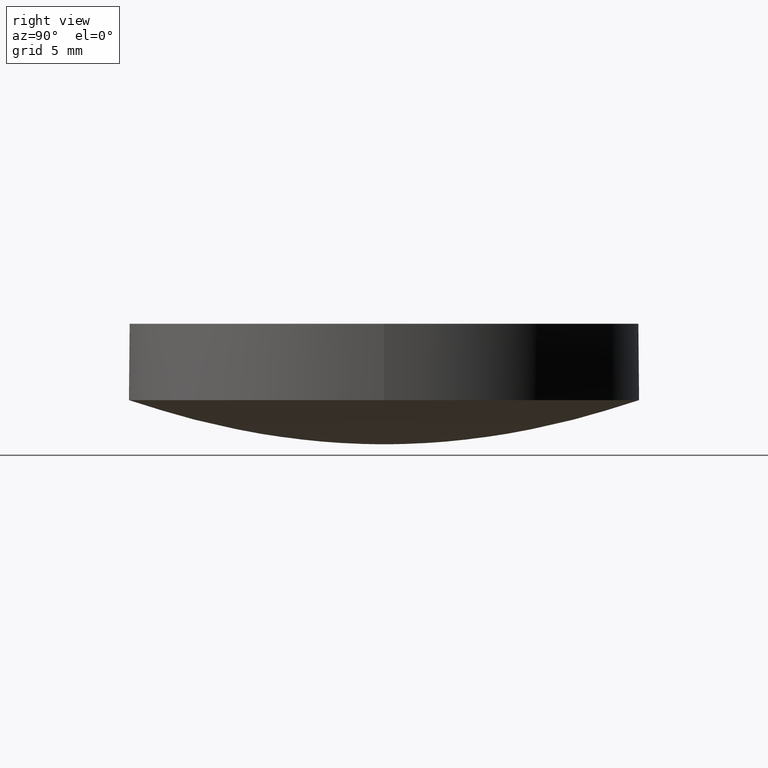
[diagram: clean part render]
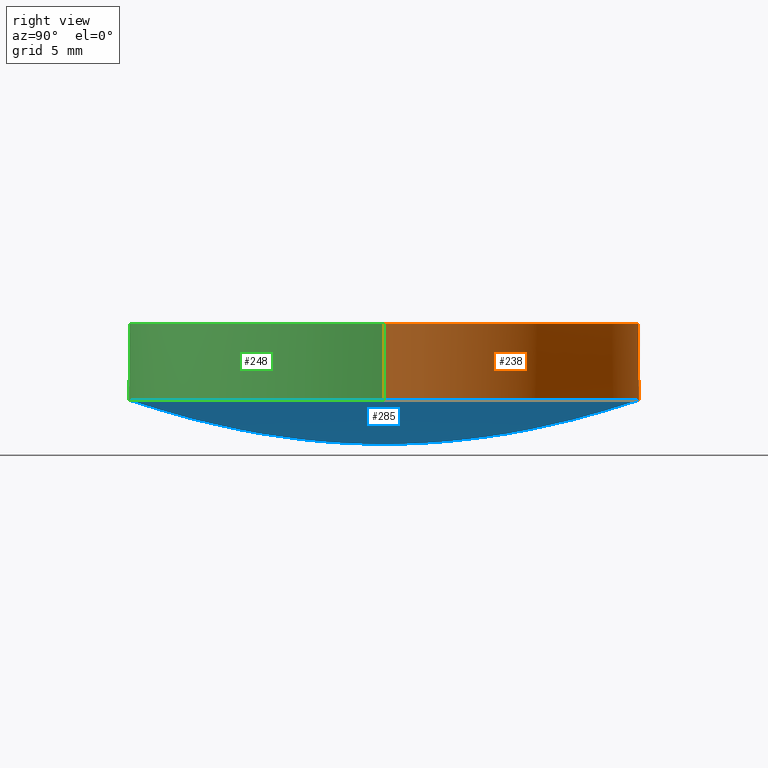
[diagram: same view with three faces highlighted in distinct colors, each labeled with its STEP entity id]
A machine part, right view with three faces highlighted in distinct colors.
Their STEP definitions:

[orange] entity #238 — the highlighted cylindrical surface (partial cylindrical patch) has radius 12.7 mm, axis along (0, 0, 1).
#5 = DIRECTION ( 'NONE',  ( -0.000000000000000000, -0.000000000000000000, -1.000000000000000000 ) ) ;
#7 = VECTOR ( 'NONE', #124, 1000.000000000000000 ) ;
#9 = VERTEX_POINT ( 'NONE', #460 ) ;
#33 = EDGE_CURVE ( 'NONE', #9, #488, #210, .T. ) ;
#41 = EDGE_CURVE ( 'NONE', #195, #68, #83, .T. ) ;
#65 = ORIENTED_EDGE ( 'NONE', *, *, #33, .T. ) ;
#68 = VERTEX_POINT ( 'NONE', #377 ) ;
#71 = EDGE_LOOP ( 'NONE', ( #111, #65, #356, #167, #403 ) ) ;
#80 = CYLINDRICAL_SURFACE ( 'NONE', #121, 12.69999999999999929 ) ;
#82 = DIRECTION ( 'NONE',  ( 1.000000000000000000, 0.000000000000000000, -6.829619984160658046E-17 ) ) ;
#83 = LINE ( 'NONE', #371, #507 ) ;
#111 = ORIENTED_EDGE ( 'NONE', *, *, #162, .F. ) ;
#121 = AXIS2_PLACEMENT_3D ( 'NONE', #134, #203, #295 ) ;
#124 = DIRECTION ( 'NONE',  ( 6.993530863780509846E-17, 4.890947394265059749E-33, 1.000000000000000000 ) ) ;
#126 = DIRECTION ( 'NONE',  ( -0.000000000000000000, -0.000000000000000000, -1.000000000000000000 ) ) ;
#134 = CARTESIAN_POINT ( 'NONE',  ( 8.881784197001250351E-16, -8.881784197001250351E-16, 2.197451818612039975 ) ) ;
#162 = EDGE_CURVE ( 'NONE', #9, #234, #225, .T. ) ;
#167 = ORIENTED_EDGE ( 'NONE', *, *, #41, .F. ) ;
#173 = CARTESIAN_POINT ( 'NONE',  ( 1.734723475976807094E-15, -1.345898117247522881E-15, 2.197451818612039975 ) ) ;
#195 = VERTEX_POINT ( 'NONE', #511 ) ;
#203 = DIRECTION ( 'NONE',  ( 6.993530863780509846E-17, 4.890947394265059749E-33, 1.000000000000000000 ) ) ;
#210 = LINE ( 'NONE', #330, #7 ) ;
#216 = CIRCLE ( 'NONE', #489, 12.69999999999999929 ) ;
#225 = CIRCLE ( 'NONE', #479, 12.70000000000000284 ) ;
#234 = VERTEX_POINT ( 'NONE', #367 ) ;
#238 = ADVANCED_FACE ( 'NONE', ( #324 ), #80, .T. ) ;
#247 = DIRECTION ( 'NONE',  ( -6.993530863780509846E-17, -4.890947394265059749E-33, -1.000000000000000000 ) ) ;
#295 = DIRECTION ( 'NONE',  ( 1.000000000000000000, 0.000000000000000000, -6.829619984160658046E-17 ) ) ;
#324 = FACE_OUTER_BOUND ( 'NONE', #71, .T. ) ;
#330 = CARTESIAN_POINT ( 'NONE',  ( -12.69999999999999751, 6.671230152170134961E-16, 2.197451818612040864 ) ) ;
#356 = ORIENTED_EDGE ( 'NONE', *, *, #425, .T. ) ;
#357 = EDGE_CURVE ( 'NONE', #234, #195, #395, .T. ) ;
#366 = CARTESIAN_POINT ( 'NONE',  ( 1.154110800375616501E-15, -8.881784197001250351E-16, 5.999999999999999112 ) ) ;
#367 = CARTESIAN_POINT ( 'NONE',  ( -3.851859888774471706E-31, 12.70000000000000284, 2.197451818612039975 ) ) ;
#371 = CARTESIAN_POINT ( 'NONE',  ( 12.70000000000000107, -8.881784197001250351E-16, 2.197451818612039087 ) ) ;
#377 = CARTESIAN_POINT ( 'NONE',  ( 12.70000000000000107, -8.881784197001250351E-16, 5.999999999999998224 ) ) ;
#395 = CIRCLE ( 'NONE', #406, 12.70000000000000284 ) ;
#403 = ORIENTED_EDGE ( 'NONE', *, *, #357, .F. ) ;
#406 = AXIS2_PLACEMENT_3D ( 'NONE', #465, #126, #504 ) ;
#413 = DIRECTION ( 'NONE',  ( -1.000000000000000000, 0.000000000000000000, 0.000000000000000000 ) ) ;
#425 = EDGE_CURVE ( 'NONE', #488, #68, #216, .T. ) ;
#454 = DIRECTION ( 'NONE',  ( 6.993530863780509846E-17, 4.890947394265059749E-33, 1.000000000000000000 ) ) ;
#460 = CARTESIAN_POINT ( 'NONE',  ( -12.70000000000000107, 6.671230152170136933E-16, 2.197451818612039975 ) ) ;
#465 = CARTESIAN_POINT ( 'NONE',  ( 1.734723475976807094E-15, -1.345898117247522881E-15, 2.197451818612039975 ) ) ;
#479 = AXIS2_PLACEMENT_3D ( 'NONE', #173, #5, #413 ) ;
#488 = VERTEX_POINT ( 'NONE', #528 ) ;
#489 = AXIS2_PLACEMENT_3D ( 'NONE', #366, #247, #82 ) ;
#504 = DIRECTION ( 'NONE',  ( -1.000000000000000000, 0.000000000000000000, 0.000000000000000000 ) ) ;
#507 = VECTOR ( 'NONE', #454, 1000.000000000000000 ) ;
#511 = CARTESIAN_POINT ( 'NONE',  ( 12.70000000000000462, -8.881784197001248379E-16, 2.197451818612039975 ) ) ;
#528 = CARTESIAN_POINT ( 'NONE',  ( -12.69999999999999751, 6.671230152170134961E-16, 6.000000000000000000 ) ) ;

[blue] entity #285 — the highlighted face is a freeform B-spline surface patch.
#1 = CARTESIAN_POINT ( 'NONE',  ( -3.241005728572560246E-17, -0.2646482014919789849, 0.000000000000000000 ) ) ;
#11 = CARTESIAN_POINT ( 'NONE',  ( -9.881579680847281111, -9.881579680847281111, 1.340326071960550092 ) ) ;
#13 = CARTESIAN_POINT ( 'NONE',  ( -6.705604643652271157, 6.705604643652271157, 0.6204309067409240486 ) ) ;
#15 = CARTESIAN_POINT ( 'NONE',  ( -11.12050896531350119, 6.809347854630319951E-16, 1.686076382450860001 ) ) ;
#19 = CARTESIAN_POINT ( 'NONE',  ( 7.587997314144440786, -1.393892493405849964E-15, 0.7937850246568419754 ) ) ;
#21 = CARTESIAN_POINT ( 'NONE',  ( 7.587997314144440786, 7.587997314144440786, 0.7937850246568420864 ) ) ;
#23 = CARTESIAN_POINT ( 'NONE',  ( 5.999939165251200635, -5.999939165251211293, 0.4967461427249240669 ) ) ;
#25 = CARTESIAN_POINT ( 'NONE',  ( 0.9709166173007780509, 0.9709166173007770517, 0.007826623216660751406 ) ) ;
#27 = CARTESIAN_POINT ( 'NONE',  ( 3.529323060183089833, -6.483261283215241177E-16, 0.1705053634074680247 ) ) ;
#29 = CARTESIAN_POINT ( 'NONE',  ( -7.347806293803730947E-16, -5.999939165251210405, 0.4967461427249240669 ) ) ;
#30 = CARTESIAN_POINT ( 'NONE',  ( 3.529323060183090277, -3.529323060183090277, 0.1705053634074679969 ) ) ;
#32 = CARTESIAN_POINT ( 'NONE',  ( 0.2646482014919789294, 0.2646482014919789294, 0.000000000000000000 ) ) ;
#34 = CARTESIAN_POINT ( 'NONE',  ( -1.555301434917141588E-15, -12.70000000000000462, 2.197451818612039975 ) ) ;
#37 = CARTESIAN_POINT ( 'NONE',  ( 0.000000000000000000, 12.69999999999999929, 2.197451818612039975 ) ) ;
#39 = CARTESIAN_POINT ( 'NONE',  ( -3.457931732471180000E-16, -2.823615539499820137, 0.1081007503329499964 ) ) ;
#40 = VERTEX_POINT ( 'NONE', #178 ) ;
#45 = CARTESIAN_POINT ( 'NONE',  ( 0.000000000000000000, 0.000000000000000000, 0.000000000000000000 ) ) ;
#48 = CARTESIAN_POINT ( 'NONE',  ( 0.000000000000000000, 9.881579680847279334, 1.340326071960550092 ) ) ;
#49 = B_SPLINE_CURVE_WITH_KNOTS ( 'NONE', 3,
 ( #414, #128, #503, #495, #365, #292, #81, #201, #325, #252, #408, #320, #405, #204, #411, #168, #450 ),
 .UNSPECIFIED., .F., .F.,
 ( 4, 1, 1, 1, 1, 1, 1, 1, 1, 1, 1, 1, 1, 1, 4 ),
 ( 0.000000000000000000, 0.1711261176727990052, 0.2135614419187649993, 0.2980152312877710208, 0.3400336964108119919, 0.4237076803100590094, 0.4653631990862669987, 0.5483733313384220320, 0.5897279448143709635, 0.6722051610619159678, 0.7133277638335130399, 0.7954152136409540219, 0.8363800606767990420, 0.9386724538563220310, 1.000000000000000000 ),
 .UNSPECIFIED. ) ;
#51 = CARTESIAN_POINT ( 'NONE',  ( 0.000000000000000000, 6.705604643652271157, 0.6204309067409240486 ) ) ;
#55 = CARTESIAN_POINT ( 'NONE',  ( -9.175968922900919367, -9.175968922900919367, 1.157604965641559902 ) ) ;
#58 = CARTESIAN_POINT ( 'NONE',  ( 9.175968922900928249, 9.175968922900919367, 1.157604965641559902 ) ) ;
#60 = CARTESIAN_POINT ( 'NONE',  ( -11.12050896531349942, 11.12050896531349942, 1.686076382450860001 ) ) ;
#62 = CARTESIAN_POINT ( 'NONE',  ( 0.000000000000000000, 5.117495180305819957, 0.3610946254766860264 ) ) ;
#64 = CARTESIAN_POINT ( 'NONE',  ( -1.853068808560519809, 1.853068808560519809, 0.04368035160071269407 ) ) ;
#67 = CARTESIAN_POINT ( 'NONE',  ( -3.529323060183090277, 3.529323060183090277, 0.1705053634074679969 ) ) ;
#70 = CARTESIAN_POINT ( 'NONE',  ( -3.529323060183090277, -3.529323060183090277, 0.1705053634074679969 ) ) ;
#73 = CARTESIAN_POINT ( 'NONE',  ( 2.823615539499820581, -2.823615539499820581, 0.1081007503329500102 ) ) ;
#74 = CIRCLE ( 'NONE', #85, 12.70000000000000284 ) ;
#78 = DIRECTION ( 'NONE',  ( -1.000000000000000000, 0.000000000000000000, 0.000000000000000000 ) ) ;
#81 = CARTESIAN_POINT ( 'NONE',  ( 0.000000000000000000, 7.587997314144440786, 0.7937850246568419754 ) ) ;
#85 = AXIS2_PLACEMENT_3D ( 'NONE', #458, #208, #78 ) ;
#91 = CARTESIAN_POINT ( 'NONE',  ( -5.999939165251211293, 5.999939165251211293, 0.4967461427249240669 ) ) ;
#95 = CARTESIAN_POINT ( 'NONE',  ( -7.587997314144440786, 4.646308311352849977E-16, 0.7937850246568419754 ) ) ;
#98 = CARTESIAN_POINT ( 'NONE',  ( 12.00034429507980072, 12.00034429507980072, 1.961206610540939588 ) ) ;
#101 = CARTESIAN_POINT ( 'NONE',  ( 0.000000000000000000, 9.881579680847279334, 1.340326071960550092 ) ) ;
#104 = CARTESIAN_POINT ( 'NONE',  ( 0.000000000000000000, 6.705604643652271157, 0.6204309067409240486 ) ) ;
#106 = CARTESIAN_POINT ( 'NONE',  ( -2.823615539499820581, -2.823615539499820581, 0.1081007503329500102 ) ) ;
#108 = CARTESIAN_POINT ( 'NONE',  ( -3.241005728572560246E-17, -0.2646482014919789849, 0.000000000000000000 ) ) ;
#110 = CARTESIAN_POINT ( 'NONE',  ( 0.9709166173007770517, -0.9709166173007780509, 0.007826623216660751406 ) ) ;
#115 = CARTESIAN_POINT ( 'NONE',  ( -0.9709166173007780509, 5.945149638081860249E-17, 0.007826623216660749671 ) ) ;
#117 = CARTESIAN_POINT ( 'NONE',  ( 0.000000000000000000, 5.999939165251210405, 0.4967461427249240669 ) ) ;
#118 = VERTEX_POINT ( 'NONE', #34 ) ;
#120 = CARTESIAN_POINT ( 'NONE',  ( 0.000000000000000000, 0.000000000000000000, 0.000000000000000000 ) ) ;
#123 = CARTESIAN_POINT ( 'NONE',  ( -4.322174188810160128E-16, -3.529323060183089833, 0.1705053634074680247 ) ) ;
#126 = DIRECTION ( 'NONE',  ( -0.000000000000000000, -0.000000000000000000, -1.000000000000000000 ) ) ;
#128 = CARTESIAN_POINT ( 'NONE',  ( 0.000000000000000000, 12.00034429507980072, 1.961206610540939810 ) ) ;
#129 = CARTESIAN_POINT ( 'NONE',  ( -9.292616622705699954E-16, -7.587997314144440786, 0.7937850246568419754 ) ) ;
#131 = CARTESIAN_POINT ( 'NONE',  ( 12.69999999999999929, 12.69999999999999929, 2.197451818612039975 ) ) ;
#133 = CARTESIAN_POINT ( 'NONE',  ( -7.347806293803730947E-16, -5.999939165251210405, 0.4967461427249240669 ) ) ;
#136 = CARTESIAN_POINT ( 'NONE',  ( 0.000000000000000000, 5.999939165251210405, 0.4967461427249240669 ) ) ;
#139 = CARTESIAN_POINT ( 'NONE',  ( -1.469618322963560219E-15, -12.00034429507980072, 1.961206610540939810 ) ) ;
#143 = CARTESIAN_POINT ( 'NONE',  ( -9.881579680847279334, 6.050722463334570254E-16, 1.340326071960550092 ) ) ;
#146 = CARTESIAN_POINT ( 'NONE',  ( -1.015677507467560091E-15, -8.293636240054830466, 0.9473380225862650938 ) ) ;
#148 = CARTESIAN_POINT ( 'NONE',  ( 6.705604643652271157, -1.231799589479459969E-15, 0.6204309067409240486 ) ) ;
#150 = CARTESIAN_POINT ( 'NONE',  ( -0.2646482014919789294, 0.2646482014919789294, 0.000000000000000000 ) ) ;
#152 = CARTESIAN_POINT ( 'NONE',  ( 1.853068808560520031, -3.404032177505150393E-16, 0.04368035160071270101 ) ) ;
#155 = CARTESIAN_POINT ( 'NONE',  ( 5.117495180305819957, 5.117495180305819957, 0.3610946254766859709 ) ) ;
#157 = CARTESIAN_POINT ( 'NONE',  ( 0.000000000000000000, 2.823615539499820137, 0.1081007503329499964 ) ) ;
#161 = CARTESIAN_POINT ( 'NONE',  ( -1.189029927616370324E-16, -0.9709166173007780509, 0.007826623216660749671 ) ) ;
#164 = CARTESIAN_POINT ( 'NONE',  ( -1.189029927616370324E-16, -0.9709166173007780509, 0.007826623216660749671 ) ) ;
#168 = CARTESIAN_POINT ( 'NONE',  ( 0.000000000000000000, 0.2646482014919789849, 0.000000000000000000 ) ) ;
#169 = CARTESIAN_POINT ( 'NONE',  ( 0.000000000000000000, 0.000000000000000000, 0.000000000000000000 ) ) ;
#170 = CARTESIAN_POINT ( 'NONE',  ( -12.00034429507980072, 12.00034429507980072, 1.961206610540939588 ) ) ;
#172 = CARTESIAN_POINT ( 'NONE',  ( -5.402905364136339613E-16, -4.411807035218689776, 0.2678392450587179785 ) ) ;
#178 = CARTESIAN_POINT ( 'NONE',  ( 0.000000000000000000, 0.000000000000000000, 0.000000000000000000 ) ) ;
#180 = CARTESIAN_POINT ( 'NONE',  ( -1.123732097050620097E-15, -9.175968922900919367, 1.157604965641559902 ) ) ;
#182 = CARTESIAN_POINT ( 'NONE',  ( -6.705604643652271157, 4.105998631598190199E-16, 0.6204309067409240486 ) ) ;
#186 = CARTESIAN_POINT ( 'NONE',  ( -11.12050896531349942, -11.12050896531349942, 1.686076382450860001 ) ) ;
#188 = CARTESIAN_POINT ( 'NONE',  ( 0.000000000000000000, 7.587997314144440786, 0.7937850246568419754 ) ) ;
#190 = CARTESIAN_POINT ( 'NONE',  ( -1.361869570926060046E-15, -11.12050896531350119, 1.686076382450860001 ) ) ;
#192 = CARTESIAN_POINT ( 'NONE',  ( 0.000000000000000000, 3.529323060183089833, 0.1705053634074680247 ) ) ;
#194 = CARTESIAN_POINT ( 'NONE',  ( 0.000000000000000000, 4.411807035218689776, 0.2678392450587179785 ) ) ;
#195 = VERTEX_POINT ( 'NONE', #511 ) ;
#197 = CARTESIAN_POINT ( 'NONE',  ( -4.411807035218689776, 4.411807035218689776, 0.2678392450587179230 ) ) ;
#199 = CARTESIAN_POINT ( 'NONE',  ( 4.411807035218689776, -8.104358046204509913E-16, 0.2678392450587179785 ) ) ;
#200 = CARTESIAN_POINT ( 'NONE',  ( -0.2646482014919789294, -0.2646482014919789294, 0.000000000000000000 ) ) ;
#201 = CARTESIAN_POINT ( 'NONE',  ( 0.000000000000000000, 6.705604643652271157, 0.6204309067409240486 ) ) ;
#204 = CARTESIAN_POINT ( 'NONE',  ( 0.000000000000000000, 1.853068808560520031, 0.04368035160071270101 ) ) ;
#206 = CARTESIAN_POINT ( 'NONE',  ( 0.000000000000000000, 12.00034429507980072, 1.961206610540939810 ) ) ;
#208 = DIRECTION ( 'NONE',  ( -0.000000000000000000, -0.000000000000000000, -1.000000000000000000 ) ) ;
#209 = CARTESIAN_POINT ( 'NONE',  ( 0.000000000000000000, 0.000000000000000000, 0.000000000000000000 ) ) ;
#219 = CARTESIAN_POINT ( 'NONE',  ( -9.881579680847281111, 9.881579680847281111, 1.340326071960550092 ) ) ;
#221 = CARTESIAN_POINT ( 'NONE',  ( 0.000000000000000000, 11.12050896531350119, 1.686076382450860001 ) ) ;
#224 = CARTESIAN_POINT ( 'NONE',  ( -8.293636240054830466, 5.078387537337820178E-16, 0.9473380225862650938 ) ) ;
#227 = CARTESIAN_POINT ( 'NONE',  ( 8.293636240054828690, -8.293636240054828690, 0.9473380225862649828 ) ) ;
#229 = CARTESIAN_POINT ( 'NONE',  ( -9.175968922900919367, 5.618660485253100484E-16, 1.157604965641559902 ) ) ;
#231 = CARTESIAN_POINT ( 'NONE',  ( 5.117495180305819957, -5.117495180305819957, 0.3610946254766859709 ) ) ;
#233 = CARTESIAN_POINT ( 'NONE',  ( 0.000000000000000000, 0.9709166173007780509, 0.007826623216660749671 ) ) ;
#234 = VERTEX_POINT ( 'NONE', #367 ) ;
#236 = CARTESIAN_POINT ( 'NONE',  ( 0.000000000000000000, 2.823615539499820137, 0.1081007503329499964 ) ) ;
#240 = CARTESIAN_POINT ( 'NONE',  ( 0.000000000000000000, 3.529323060183089833, 0.1705053634074680247 ) ) ;
#242 = CARTESIAN_POINT ( 'NONE',  ( -0.9709166173007780509, -0.9709166173007770517, 0.007826623216660751406 ) ) ;
#243 = ORIENTED_EDGE ( 'NONE', *, *, #357, .T. ) ;
#249 = CARTESIAN_POINT ( 'NONE',  ( 12.69999999999999929, -2.332952152375710015E-15, 2.197451818612039975 ) ) ;
#250 = CARTESIAN_POINT ( 'NONE',  ( 0.000000000000000000, 0.000000000000000000, 0.000000000000000000 ) ) ;
#251 = CARTESIAN_POINT ( 'NONE',  ( -1.555301434917140010E-15, -12.69999999999999929, 2.197451818612039975 ) ) ;
#252 = CARTESIAN_POINT ( 'NONE',  ( 0.000000000000000000, 5.117495180305819957, 0.3610946254766860264 ) ) ;
#258 = CARTESIAN_POINT ( 'NONE',  ( 0.000000000000000000, 11.12050896531350119, 1.686076382450860001 ) ) ;
#261 = CARTESIAN_POINT ( 'NONE',  ( -7.587997314144440786, -7.587997314144440786, 0.7937850246568420864 ) ) ;
#263 = CARTESIAN_POINT ( 'NONE',  ( -12.00034429507980072, -12.00034429507980072, 1.961206610540939588 ) ) ;
#265 = CARTESIAN_POINT ( 'NONE',  ( 0.000000000000000000, 9.175968922900919367, 1.157604965641559902 ) ) ;
#267 = CARTESIAN_POINT ( 'NONE',  ( 11.12050896531349942, 11.12050896531349942, 1.686076382450860001 ) ) ;
#269 = CARTESIAN_POINT ( 'NONE',  ( -5.117495180305819957, 5.117495180305819957, 0.3610946254766859709 ) ) ;
#271 = CARTESIAN_POINT ( 'NONE',  ( 5.117495180305819957, -9.400686138320300585E-16, 0.3610946254766860264 ) ) ;
#274 = CARTESIAN_POINT ( 'NONE',  ( 2.823615539499820137, -5.186897598706770001E-16, 0.1081007503329499964 ) ) ;
#277 = CARTESIAN_POINT ( 'NONE',  ( 0.000000000000000000, 0.2646482014919789849, 0.000000000000000000 ) ) ;
#279 = CARTESIAN_POINT ( 'NONE',  ( 0.000000000000000000, 4.411807035218689776, 0.2678392450587179785 ) ) ;
#285 = ADVANCED_FACE ( 'NONE', ( #542 ), #524, .T. ) ;
#288 = CARTESIAN_POINT ( 'NONE',  ( -12.69999999999999929, -12.69999999999999929, 2.197451818612039975 ) ) ;
#290 = CARTESIAN_POINT ( 'NONE',  ( -6.267124092213530108E-16, -5.117495180305819957, 0.3610946254766860264 ) ) ;
#291 = CARTESIAN_POINT ( 'NONE',  ( 0.000000000000000000, 12.69999999999999929, 2.197451818612039975 ) ) ;
#292 = CARTESIAN_POINT ( 'NONE',  ( 0.000000000000000000, 8.293636240054830466, 0.9473380225862650938 ) ) ;
#294 = CARTESIAN_POINT ( 'NONE',  ( 0.000000000000000000, 0.000000000000000000, 0.000000000000000000 ) ) ;
#297 = CARTESIAN_POINT ( 'NONE',  ( -5.999939165251210405, 3.673903146901869911E-16, 0.4967461427249240669 ) ) ;
#300 = CARTESIAN_POINT ( 'NONE',  ( 0.000000000000000000, 12.00034429507980072, 1.961206610540939810 ) ) ;
#302 = CARTESIAN_POINT ( 'NONE',  ( -1.210144492666909909E-15, -9.881579680847279334, 1.340326071960550092 ) ) ;
#304 = CARTESIAN_POINT ( 'NONE',  ( -6.705604643652271157, -6.705604643652271157, 0.6204309067409240486 ) ) ;
#306 = CARTESIAN_POINT ( 'NONE',  ( 8.293636240054828690, 8.293636240054828690, 0.9473380225862649828 ) ) ;
#309 = CARTESIAN_POINT ( 'NONE',  ( -3.529323060183089833, 2.161087094405080064E-16, 0.1705053634074680247 ) ) ;
#311 = CARTESIAN_POINT ( 'NONE',  ( 1.853068808560519809, 1.853068808560519809, 0.04368035160071269407 ) ) ;
#313 = CARTESIAN_POINT ( 'NONE',  ( -2.823615539499820581, 2.823615539499820581, 0.1081007503329500102 ) ) ;
#317 = CARTESIAN_POINT ( 'NONE',  ( 4.411807035218689776, 4.411807035218680006, 0.2678392450587179230 ) ) ;
#319 = CARTESIAN_POINT ( 'NONE',  ( -5.402905364136339613E-16, -4.411807035218689776, 0.2678392450587179785 ) ) ;
#320 = CARTESIAN_POINT ( 'NONE',  ( 0.000000000000000000, 3.529323060183089833, 0.1705053634074680247 ) ) ;
#323 = CARTESIAN_POINT ( 'NONE',  ( -2.269354785003439840E-16, -1.853068808560520031, 0.04368035160071270101 ) ) ;
#325 = CARTESIAN_POINT ( 'NONE',  ( 0.000000000000000000, 5.999939165251210405, 0.4967461427249240669 ) ) ;
#326 = CARTESIAN_POINT ( 'NONE',  ( 0.000000000000000000, 0.000000000000000000, 0.000000000000000000 ) ) ;
#327 = CARTESIAN_POINT ( 'NONE',  ( -12.69999999999999929, 7.776507174585690191E-16, 2.197451818612039975 ) ) ;
#328 = EDGE_CURVE ( 'NONE', #118, #40, #385, .T. ) ;
#339 = CARTESIAN_POINT ( 'NONE',  ( -8.293636240054828690, 8.293636240054828690, 0.9473380225862649828 ) ) ;
#344 = CARTESIAN_POINT ( 'NONE',  ( -8.211997263196380398E-16, -6.705604643652271157, 0.6204309067409240486 ) ) ;
#347 = CARTESIAN_POINT ( 'NONE',  ( 9.881579680847279334, -1.815216739000370189E-15, 1.340326071960550092 ) ) ;
#349 = CARTESIAN_POINT ( 'NONE',  ( 9.881579680847281111, -9.881579680847281111, 1.340326071960550092 ) ) ;
#351 = CARTESIAN_POINT ( 'NONE',  ( 12.00034429507980072, -2.204427484445339934E-15, 1.961206610540939810 ) ) ;
#353 = CARTESIAN_POINT ( 'NONE',  ( 3.529323060183090277, 3.529323060183090277, 0.1705053634074679969 ) ) ;
#355 = CARTESIAN_POINT ( 'NONE',  ( -1.853068808560519809, -1.853068808560519809, 0.04368035160071269407 ) ) ;
#357 = EDGE_CURVE ( 'NONE', #234, #195, #395, .T. ) ;
#359 = CARTESIAN_POINT ( 'NONE',  ( -6.267124092213530108E-16, -5.117495180305819957, 0.3610946254766860264 ) ) ;
#360 = ORIENTED_EDGE ( 'NONE', *, *, #532, .T. ) ;
#362 = CARTESIAN_POINT ( 'NONE',  ( 5.999939165251211293, 5.999939165251200635, 0.4967461427249240669 ) ) ;
#364 = CARTESIAN_POINT ( 'NONE',  ( -1.123732097050620097E-15, -9.175968922900919367, 1.157604965641559902 ) ) ;
#365 = CARTESIAN_POINT ( 'NONE',  ( 0.000000000000000000, 9.175968922900919367, 1.157604965641559902 ) ) ;
#367 = CARTESIAN_POINT ( 'NONE',  ( -3.851859888774471706E-31, 12.70000000000000284, 2.197451818612039975 ) ) ;
#369 = CARTESIAN_POINT ( 'NONE',  ( -1.555301434917141588E-15, -12.70000000000000462, 2.197451818612039975 ) ) ;
#372 = CARTESIAN_POINT ( 'NONE',  ( -1.015677507467560091E-15, -8.293636240054830466, 0.9473380225862650938 ) ) ;
#379 = CARTESIAN_POINT ( 'NONE',  ( 0.000000000000000000, 9.175968922900919367, 1.157604965641559902 ) ) ;
#381 = CARTESIAN_POINT ( 'NONE',  ( 9.175968922900919367, -1.685598145575929948E-15, 1.157604965641559902 ) ) ;
#384 = CARTESIAN_POINT ( 'NONE',  ( -7.587997314144440786, 7.587997314144440786, 0.7937850246568420864 ) ) ;
#385 = B_SPLINE_CURVE_WITH_KNOTS ( 'NONE', 3,
 ( #369, #456, #538, #499, #364, #372, #129, #544, #133, #290, #172, #123, #39, #323, #164, #1, #169 ),
 .UNSPECIFIED., .F., .F.,
 ( 4, 1, 1, 1, 1, 1, 1, 1, 1, 1, 1, 1, 1, 1, 4 ),
 ( 0.000000000000000000, 0.1711261176727990052, 0.2135614419187649993, 0.2980152312877710208, 0.3400336964108119919, 0.4237076803100590094, 0.4653631990862669987, 0.5483733313384220320, 0.5897279448143709635, 0.6722051610619159678, 0.7133277638335130399, 0.7954152136409540219, 0.8363800606767990420, 0.9386724538563220310, 1.000000000000000000 ),
 .UNSPECIFIED. ) ;
#389 = CARTESIAN_POINT ( 'NONE',  ( -9.292616622705699954E-16, -7.587997314144440786, 0.7937850246568419754 ) ) ;
#391 = CARTESIAN_POINT ( 'NONE',  ( 0.000000000000000000, 7.587997314144440786, 0.7937850246568419754 ) ) ;
#393 = CARTESIAN_POINT ( 'NONE',  ( -4.411807035218689776, -4.411807035218680006, 0.2678392450587179230 ) ) ;
#395 = CIRCLE ( 'NONE', #406, 12.70000000000000284 ) ;
#397 = CARTESIAN_POINT ( 'NONE',  ( 0.9709166173007780509, -1.783544891424559924E-16, 0.007826623216660749671 ) ) ;
#400 = CARTESIAN_POINT ( 'NONE',  ( 0.000000000000000000, 5.117495180305819957, 0.3610946254766860264 ) ) ;
#402 = CARTESIAN_POINT ( 'NONE',  ( -4.411807035218689776, 2.701452682068169807E-16, 0.2678392450587179785 ) ) ;
#405 = CARTESIAN_POINT ( 'NONE',  ( 0.000000000000000000, 2.823615539499820137, 0.1081007503329499964 ) ) ;
#406 = AXIS2_PLACEMENT_3D ( 'NONE', #465, #126, #504 ) ;
#407 = CARTESIAN_POINT ( 'NONE',  ( 0.000000000000000000, 0.9709166173007780509, 0.007826623216660749671 ) ) ;
#408 = CARTESIAN_POINT ( 'NONE',  ( 0.000000000000000000, 4.411807035218689776, 0.2678392450587179785 ) ) ;
#411 = CARTESIAN_POINT ( 'NONE',  ( 0.000000000000000000, 0.9709166173007780509, 0.007826623216660749671 ) ) ;
#414 = CARTESIAN_POINT ( 'NONE',  ( -3.851859888774471706E-31, 12.70000000000000284, 2.197451818612039975 ) ) ;
#415 = CARTESIAN_POINT ( 'NONE',  ( 0.000000000000000000, 0.000000000000000000, 0.000000000000000000 ) ) ;
#417 = EDGE_LOOP ( 'NONE', ( #360, #539, #509, #243 ) ) ;
#422 = CARTESIAN_POINT ( 'NONE',  ( 0.2646482014919789849, -4.861508592858829892E-17, 0.000000000000000000 ) ) ;
#427 = CARTESIAN_POINT ( 'NONE',  ( 12.00034429507980072, -12.00034429507980072, 1.961206610540939588 ) ) ;
#431 = CARTESIAN_POINT ( 'NONE',  ( 7.587997314144440786, -7.587997314144440786, 0.7937850246568420864 ) ) ;
#433 = CARTESIAN_POINT ( 'NONE',  ( 11.12050896531349942, -11.12050896531349942, 1.686076382450860001 ) ) ;
#436 = CARTESIAN_POINT ( 'NONE',  ( 11.12050896531350119, -2.042804356389100028E-15, 1.686076382450860001 ) ) ;
#439 = CARTESIAN_POINT ( 'NONE',  ( 9.175968922900919367, -9.175968922900928249, 1.157604965641559902 ) ) ;
#441 = CARTESIAN_POINT ( 'NONE',  ( -5.117495180305819957, -5.117495180305819957, 0.3610946254766859709 ) ) ;
#444 = CARTESIAN_POINT ( 'NONE',  ( 5.999939165251210405, -1.102170944070560086E-15, 0.4967461427249240669 ) ) ;
#447 = CARTESIAN_POINT ( 'NONE',  ( -5.117495180305819957, 3.133562046106770477E-16, 0.3610946254766860264 ) ) ;
#449 = CARTESIAN_POINT ( 'NONE',  ( -0.2646482014919789849, 1.620502864286280123E-17, 0.000000000000000000 ) ) ;
#450 = CARTESIAN_POINT ( 'NONE',  ( 0.000000000000000000, 0.000000000000000000, 0.000000000000000000 ) ) ;
#451 = CARTESIAN_POINT ( 'NONE',  ( -3.457931732471180000E-16, -2.823615539499820137, 0.1081007503329499964 ) ) ;
#456 = CARTESIAN_POINT ( 'NONE',  ( -1.469618322963560219E-15, -12.00034429507980072, 1.961206610540939810 ) ) ;
#457 = CARTESIAN_POINT ( 'NONE',  ( 12.69999999999999929, -12.69999999999999929, 2.197451818612039975 ) ) ;
#458 = CARTESIAN_POINT ( 'NONE',  ( 1.734723475976807094E-15, -1.345898117247522881E-15, 2.197451818612039975 ) ) ;
#459 = CARTESIAN_POINT ( 'NONE',  ( 0.2646482014919789294, -0.2646482014919789294, 0.000000000000000000 ) ) ;
#465 = CARTESIAN_POINT ( 'NONE',  ( 1.734723475976807094E-15, -1.345898117247522881E-15, 2.197451818612039975 ) ) ;
#469 = CARTESIAN_POINT ( 'NONE',  ( -5.999939165251211293, -5.999939165251200635, 0.4967461427249240669 ) ) ;
#471 = CARTESIAN_POINT ( 'NONE',  ( 0.000000000000000000, 8.293636240054830466, 0.9473380225862650938 ) ) ;
#473 = CARTESIAN_POINT ( 'NONE',  ( 0.000000000000000000, 8.293636240054830466, 0.9473380225862650938 ) ) ;
#476 = CARTESIAN_POINT ( 'NONE',  ( 9.881579680847281111, 9.881579680847281111, 1.340326071960550092 ) ) ;
#478 = CARTESIAN_POINT ( 'NONE',  ( 6.705604643652271157, 6.705604643652271157, 0.6204309067409240486 ) ) ;
#481 = CARTESIAN_POINT ( 'NONE',  ( -2.823615539499820137, 1.728965866235590000E-16, 0.1081007503329499964 ) ) ;
#484 = CARTESIAN_POINT ( 'NONE',  ( -0.9709166173007770517, 0.9709166173007780509, 0.007826623216660751406 ) ) ;
#487 = CARTESIAN_POINT ( 'NONE',  ( 1.853068808560519809, -1.853068808560519809, 0.04368035160071269407 ) ) ;
#491 = CARTESIAN_POINT ( 'NONE',  ( -2.269354785003439840E-16, -1.853068808560520031, 0.04368035160071270101 ) ) ;
#494 = CARTESIAN_POINT ( 'NONE',  ( 4.411807035218680006, -4.411807035218689776, 0.2678392450587179230 ) ) ;
#495 = CARTESIAN_POINT ( 'NONE',  ( 0.000000000000000000, 9.881579680847279334, 1.340326071960550092 ) ) ;
#496 = CARTESIAN_POINT ( 'NONE',  ( 0.000000000000000000, 0.000000000000000000, 0.000000000000000000 ) ) ;
#499 = CARTESIAN_POINT ( 'NONE',  ( -1.210144492666909909E-15, -9.881579680847279334, 1.340326071960550092 ) ) ;
#500 = EDGE_CURVE ( 'NONE', #234, #40, #49, .T. ) ;
#501 = CARTESIAN_POINT ( 'NONE',  ( 0.000000000000000000, 0.2646482014919789849, 0.000000000000000000 ) ) ;
#502 = CARTESIAN_POINT ( 'NONE',  ( -12.00034429507980072, 7.348091614817809970E-16, 1.961206610540939810 ) ) ;
#503 = CARTESIAN_POINT ( 'NONE',  ( 0.000000000000000000, 11.12050896531350119, 1.686076382450860001 ) ) ;
#504 = DIRECTION ( 'NONE',  ( -1.000000000000000000, 0.000000000000000000, 0.000000000000000000 ) ) ;
#509 = ORIENTED_EDGE ( 'NONE', *, *, #500, .F. ) ;
#511 = CARTESIAN_POINT ( 'NONE',  ( 12.70000000000000462, -8.881784197001248379E-16, 2.197451818612039975 ) ) ;
#513 = CARTESIAN_POINT ( 'NONE',  ( 8.293636240054830466, -1.523516261201350195E-15, 0.9473380225862650938 ) ) ;
#516 = CARTESIAN_POINT ( 'NONE',  ( 6.705604643652271157, -6.705604643652271157, 0.6204309067409240486 ) ) ;
#521 = CARTESIAN_POINT ( 'NONE',  ( -9.175968922900919367, 9.175968922900919367, 1.157604965641559902 ) ) ;
#523 = CARTESIAN_POINT ( 'NONE',  ( -8.293636240054828690, -8.293636240054828690, 0.9473380225862649828 ) ) ;
#524 =( BOUNDED_SURFACE ( )  B_SPLINE_SURFACE ( 3, 2, ( 
 ( #291, #545, #327, #288, #251, #457, #249, #131, #37 ),
 ( #206, #170, #502, #263, #139, #427, #351, #98, #300 ),
 ( #258, #60, #15, #186, #190, #433, #436, #267, #221 ),
 ( #101, #219, #143, #11, #302, #349, #347, #476, #48 ),
 ( #379, #521, #229, #55, #180, #439, #381, #58, #265 ),
 ( #473, #339, #224, #523, #146, #227, #513, #306, #471 ),
 ( #391, #384, #95, #261, #389, #431, #19, #21, #188 ),
 ( #51, #13, #182, #304, #344, #516, #148, #478, #104 ),
 ( #136, #91, #297, #469, #29, #23, #444, #362, #117 ),
 ( #62, #269, #447, #441, #359, #231, #271, #155, #400 ),
 ( #194, #197, #402, #393, #319, #494, #199, #317, #279 ),
 ( #192, #67, #309, #70, #534, #30, #27, #353, #240 ),
 ( #157, #313, #481, #106, #451, #73, #274, #536, #236 ),
 ( #529, #64, #526, #355, #491, #487, #152, #311, #531 ),
 ( #233, #484, #115, #242, #161, #110, #397, #25, #407 ),
 ( #277, #150, #449, #200, #108, #459, #422, #32, #501 ),
 ( #120, #45, #326, #541, #209, #496, #294, #250, #415 ) ),
 .UNSPECIFIED., .F., .T., .T. ) 
 B_SPLINE_SURFACE_WITH_KNOTS ( ( 4, 1, 1, 1, 1, 1, 1, 1, 1, 1, 1, 1, 1, 1, 4 ),
 ( 3, 2, 2, 2, 3 ),
 ( 0.000000000000000000, 0.1711261176727990052, 0.2135614419187649993, 0.2980152312877710208, 0.3400336964108119919, 0.4237076803100590094, 0.4653631990862669987, 0.5483733313384220320, 0.5897279448143709635, 0.6722051610619159678, 0.7133277638335130399, 0.7954152136409540219, 0.8363800606767990420, 0.9386724538563220310, 1.000000000000000000 ),
 ( 0.000000000000000000, 90.00000000000000000, 180.0000000000000000, 270.0000000000000000, 360.0000000000000000 ),
 .UNSPECIFIED. ) 
 GEOMETRIC_REPRESENTATION_ITEM ( )  RATIONAL_B_SPLINE_SURFACE ( (
 ( 1.000000000000000000, 0.7071067811865480168, 1.000000000000000000, 0.7071067811865480168, 1.000000000000000000, 0.7071067811865480168, 1.000000000000000000, 0.7071067811865480168, 1.000000000000000000),
 ( 1.000000000000000000, 0.7071067811865480168, 1.000000000000000000, 0.7071067811865480168, 1.000000000000000000, 0.7071067811865480168, 1.000000000000000000, 0.7071067811865480168, 1.000000000000000000),
 ( 1.000000000000000000, 0.7071067811865480168, 1.000000000000000000, 0.7071067811865480168, 1.000000000000000000, 0.7071067811865480168, 1.000000000000000000, 0.7071067811865480168, 1.000000000000000000),
 ( 1.000000000000000000, 0.7071067811865480168, 1.000000000000000000, 0.7071067811865480168, 1.000000000000000000, 0.7071067811865480168, 1.000000000000000000, 0.7071067811865480168, 1.000000000000000000),
 ( 1.000000000000000000, 0.7071067811865480168, 1.000000000000000000, 0.7071067811865480168, 1.000000000000000000, 0.7071067811865480168, 1.000000000000000000, 0.7071067811865480168, 1.000000000000000000),
 ( 1.000000000000000000, 0.7071067811865480168, 1.000000000000000000, 0.7071067811865480168, 1.000000000000000000, 0.7071067811865480168, 1.000000000000000000, 0.7071067811865480168, 1.000000000000000000),
 ( 1.000000000000000000, 0.7071067811865480168, 1.000000000000000000, 0.7071067811865480168, 1.000000000000000000, 0.7071067811865480168, 1.000000000000000000, 0.7071067811865480168, 1.000000000000000000),
 ( 1.000000000000000000, 0.7071067811865480168, 1.000000000000000000, 0.7071067811865480168, 1.000000000000000000, 0.7071067811865480168, 1.000000000000000000, 0.7071067811865480168, 1.000000000000000000),
 ( 1.000000000000000000, 0.7071067811865480168, 1.000000000000000000, 0.7071067811865480168, 1.000000000000000000, 0.7071067811865480168, 1.000000000000000000, 0.7071067811865480168, 1.000000000000000000),
 ( 1.000000000000000000, 0.7071067811865480168, 1.000000000000000000, 0.7071067811865480168, 1.000000000000000000, 0.7071067811865480168, 1.000000000000000000, 0.7071067811865480168, 1.000000000000000000),
 ( 1.000000000000000000, 0.7071067811865480168, 1.000000000000000000, 0.7071067811865480168, 1.000000000000000000, 0.7071067811865480168, 1.000000000000000000, 0.7071067811865480168, 1.000000000000000000),
 ( 1.000000000000000000, 0.7071067811865480168, 1.000000000000000000, 0.7071067811865480168, 1.000000000000000000, 0.7071067811865480168, 1.000000000000000000, 0.7071067811865480168, 1.000000000000000000),
 ( 1.000000000000000000, 0.7071067811865480168, 1.000000000000000000, 0.7071067811865480168, 1.000000000000000000, 0.7071067811865480168, 1.000000000000000000, 0.7071067811865480168, 1.000000000000000000),
 ( 1.000000000000000000, 0.7071067811865480168, 1.000000000000000000, 0.7071067811865480168, 1.000000000000000000, 0.7071067811865480168, 1.000000000000000000, 0.7071067811865480168, 1.000000000000000000),
 ( 1.000000000000000000, 0.7071067811865480168, 1.000000000000000000, 0.7071067811865480168, 1.000000000000000000, 0.7071067811865480168, 1.000000000000000000, 0.7071067811865480168, 1.000000000000000000),
 ( 1.000000000000000000, 0.7071067811865480168, 1.000000000000000000, 0.7071067811865480168, 1.000000000000000000, 0.7071067811865480168, 1.000000000000000000, 0.7071067811865480168, 1.000000000000000000),
 ( 1.000000000000000000, 0.7071067811865480168, 1.000000000000000000, 0.7071067811865480168, 1.000000000000000000, 0.7071067811865480168, 1.000000000000000000, 0.7071067811865480168, 1.000000000000000000) ) ) 
 REPRESENTATION_ITEM ( '' )  SURFACE ( )  );
#526 = CARTESIAN_POINT ( 'NONE',  ( -1.853068808560520031, 1.134677392501719920E-16, 0.04368035160071270101 ) ) ;
#529 = CARTESIAN_POINT ( 'NONE',  ( 0.000000000000000000, 1.853068808560520031, 0.04368035160071270101 ) ) ;
#531 = CARTESIAN_POINT ( 'NONE',  ( 0.000000000000000000, 1.853068808560520031, 0.04368035160071270101 ) ) ;
#532 = EDGE_CURVE ( 'NONE', #195, #118, #74, .T. ) ;
#534 = CARTESIAN_POINT ( 'NONE',  ( -4.322174188810160128E-16, -3.529323060183089833, 0.1705053634074680247 ) ) ;
#536 = CARTESIAN_POINT ( 'NONE',  ( 2.823615539499820581, 2.823615539499820581, 0.1081007503329500102 ) ) ;
#538 = CARTESIAN_POINT ( 'NONE',  ( -1.361869570926060046E-15, -11.12050896531350119, 1.686076382450860001 ) ) ;
#539 = ORIENTED_EDGE ( 'NONE', *, *, #328, .T. ) ;
#541 = CARTESIAN_POINT ( 'NONE',  ( 0.000000000000000000, 0.000000000000000000, 0.000000000000000000 ) ) ;
#542 = FACE_OUTER_BOUND ( 'NONE', #417, .T. ) ;
#544 = CARTESIAN_POINT ( 'NONE',  ( -8.211997263196380398E-16, -6.705604643652271157, 0.6204309067409240486 ) ) ;
#545 = CARTESIAN_POINT ( 'NONE',  ( -12.69999999999999929, 12.69999999999999929, 2.197451818612039975 ) ) ;

[green] entity #248 — the highlighted cylindrical surface (partial cylindrical patch) has radius 12.7 mm, axis along (0, 0, 1).
#2 = DIRECTION ( 'NONE',  ( -6.993530863780509846E-17, -4.890947394265059749E-33, -1.000000000000000000 ) ) ;
#7 = VECTOR ( 'NONE', #124, 1000.000000000000000 ) ;
#9 = VERTEX_POINT ( 'NONE', #460 ) ;
#33 = EDGE_CURVE ( 'NONE', #9, #488, #210, .T. ) ;
#34 = CARTESIAN_POINT ( 'NONE',  ( -1.555301434917141588E-15, -12.70000000000000462, 2.197451818612039975 ) ) ;
#41 = EDGE_CURVE ( 'NONE', #195, #68, #83, .T. ) ;
#44 = DIRECTION ( 'NONE',  ( -0.000000000000000000, -0.000000000000000000, -1.000000000000000000 ) ) ;
#46 = FACE_OUTER_BOUND ( 'NONE', #176, .T. ) ;
#52 = EDGE_CURVE ( 'NONE', #118, #9, #334, .T. ) ;
#68 = VERTEX_POINT ( 'NONE', #377 ) ;
#74 = CIRCLE ( 'NONE', #85, 12.70000000000000284 ) ;
#77 = DIRECTION ( 'NONE',  ( 1.000000000000000000, 0.000000000000000000, -6.829619984160658046E-17 ) ) ;
#78 = DIRECTION ( 'NONE',  ( -1.000000000000000000, 0.000000000000000000, 0.000000000000000000 ) ) ;
#83 = LINE ( 'NONE', #371, #507 ) ;
#85 = AXIS2_PLACEMENT_3D ( 'NONE', #458, #208, #78 ) ;
#87 = ORIENTED_EDGE ( 'NONE', *, *, #119, .T. ) ;
#103 = CIRCLE ( 'NONE', #416, 12.69999999999999929 ) ;
#118 = VERTEX_POINT ( 'NONE', #34 ) ;
#119 = EDGE_CURVE ( 'NONE', #68, #488, #103, .T. ) ;
#124 = DIRECTION ( 'NONE',  ( 6.993530863780509846E-17, 4.890947394265059749E-33, 1.000000000000000000 ) ) ;
#127 = DIRECTION ( 'NONE',  ( 6.993530863780509846E-17, 4.890947394265059749E-33, 1.000000000000000000 ) ) ;
#176 = EDGE_LOOP ( 'NONE', ( #497, #398, #237, #213, #87 ) ) ;
#195 = VERTEX_POINT ( 'NONE', #511 ) ;
#208 = DIRECTION ( 'NONE',  ( -0.000000000000000000, -0.000000000000000000, -1.000000000000000000 ) ) ;
#210 = LINE ( 'NONE', #330, #7 ) ;
#213 = ORIENTED_EDGE ( 'NONE', *, *, #41, .T. ) ;
#237 = ORIENTED_EDGE ( 'NONE', *, *, #532, .F. ) ;
#248 = ADVANCED_FACE ( 'NONE', ( #46 ), #283, .T. ) ;
#283 = CYLINDRICAL_SURFACE ( 'NONE', #307, 12.69999999999999929 ) ;
#293 = DIRECTION ( 'NONE',  ( 1.000000000000000000, 0.000000000000000000, -6.829619984160658046E-17 ) ) ;
#307 = AXIS2_PLACEMENT_3D ( 'NONE', #505, #127, #77 ) ;
#316 = AXIS2_PLACEMENT_3D ( 'NONE', #373, #44, #423 ) ;
#330 = CARTESIAN_POINT ( 'NONE',  ( -12.69999999999999751, 6.671230152170134961E-16, 2.197451818612040864 ) ) ;
#334 = CIRCLE ( 'NONE', #316, 12.70000000000000284 ) ;
#371 = CARTESIAN_POINT ( 'NONE',  ( 12.70000000000000107, -8.881784197001250351E-16, 2.197451818612039087 ) ) ;
#373 = CARTESIAN_POINT ( 'NONE',  ( 1.734723475976807094E-15, -1.345898117247522881E-15, 2.197451818612039975 ) ) ;
#375 = CARTESIAN_POINT ( 'NONE',  ( 1.154110800375616501E-15, -8.881784197001250351E-16, 5.999999999999999112 ) ) ;
#377 = CARTESIAN_POINT ( 'NONE',  ( 12.70000000000000107, -8.881784197001250351E-16, 5.999999999999998224 ) ) ;
#398 = ORIENTED_EDGE ( 'NONE', *, *, #52, .F. ) ;
#416 = AXIS2_PLACEMENT_3D ( 'NONE', #375, #2, #293 ) ;
#423 = DIRECTION ( 'NONE',  ( -1.000000000000000000, 0.000000000000000000, 0.000000000000000000 ) ) ;
#454 = DIRECTION ( 'NONE',  ( 6.993530863780509846E-17, 4.890947394265059749E-33, 1.000000000000000000 ) ) ;
#458 = CARTESIAN_POINT ( 'NONE',  ( 1.734723475976807094E-15, -1.345898117247522881E-15, 2.197451818612039975 ) ) ;
#460 = CARTESIAN_POINT ( 'NONE',  ( -12.70000000000000107, 6.671230152170136933E-16, 2.197451818612039975 ) ) ;
#488 = VERTEX_POINT ( 'NONE', #528 ) ;
#497 = ORIENTED_EDGE ( 'NONE', *, *, #33, .F. ) ;
#505 = CARTESIAN_POINT ( 'NONE',  ( 8.881784197001250351E-16, -8.881784197001250351E-16, 2.197451818612039975 ) ) ;
#507 = VECTOR ( 'NONE', #454, 1000.000000000000000 ) ;
#511 = CARTESIAN_POINT ( 'NONE',  ( 12.70000000000000462, -8.881784197001248379E-16, 2.197451818612039975 ) ) ;
#528 = CARTESIAN_POINT ( 'NONE',  ( -12.69999999999999751, 6.671230152170134961E-16, 6.000000000000000000 ) ) ;
#532 = EDGE_CURVE ( 'NONE', #195, #118, #74, .T. ) ;